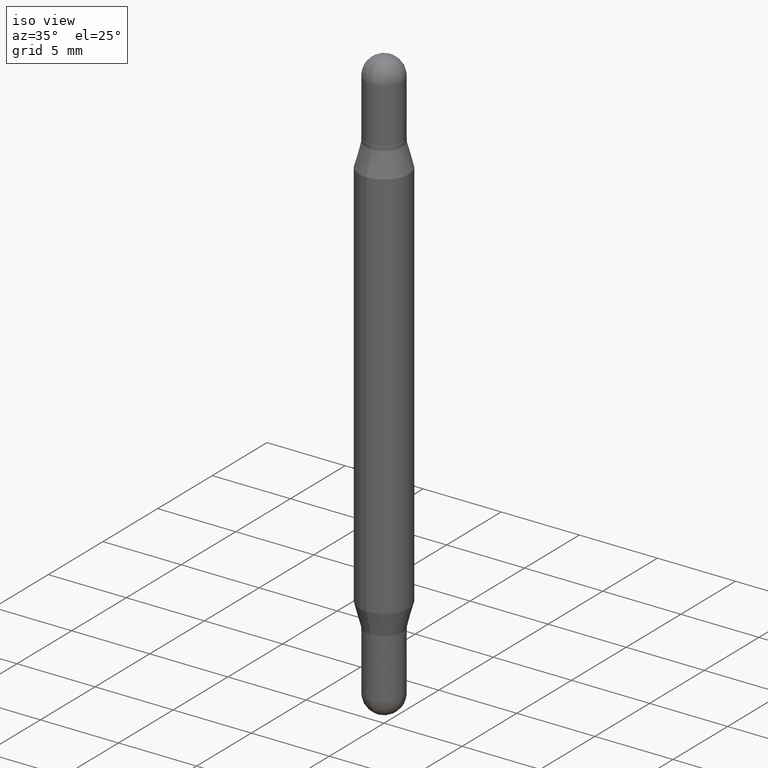
[diagram: clean part render]
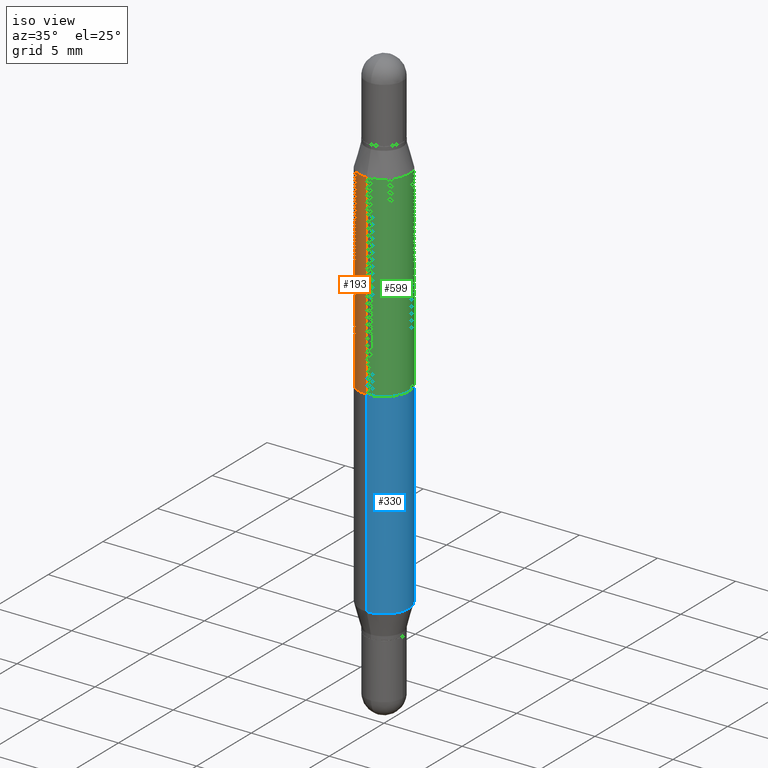
[diagram: same view with three faces highlighted in distinct colors, each labeled with its STEP entity id]
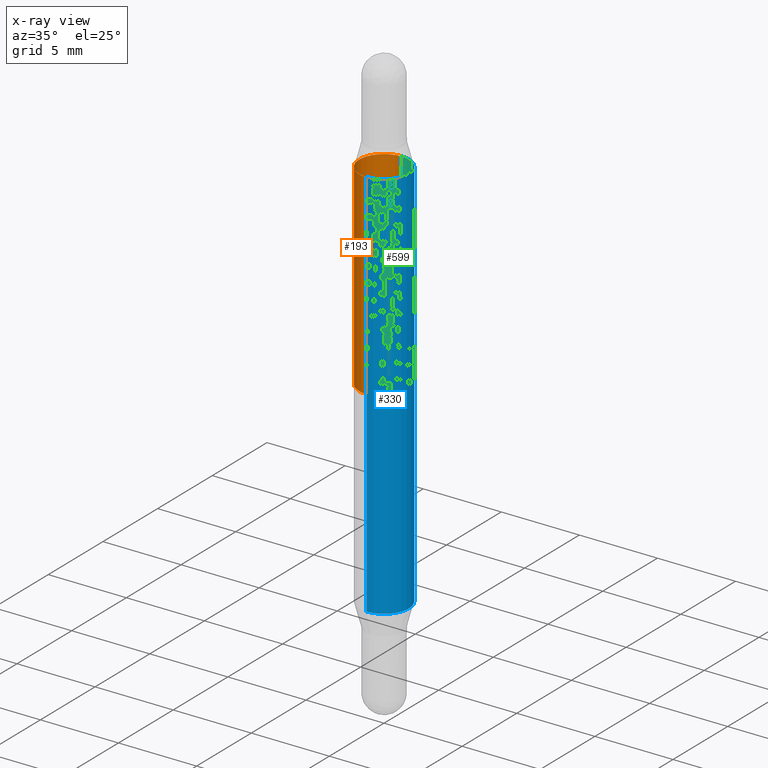
[diagram: x-ray of the same camera — body ghosted, the three highlighted faces saturated]
A machine part, iso view with three faces highlighted in distinct colors.
The next image is the same camera in x-ray (body ghosted, the three faces saturated) — at least one of them is partly hidden behind the body in this view.
Their STEP definitions:

[orange] entity #193 — the highlighted cylindrical surface (edge-blend (fillet) strip) has radius 1.5875 mm, axis along (-0, -0, -1).
#22 = CARTESIAN_POINT ( 'NONE',  ( 3.044245832732528794E-29, -8.967165018103877989E-16, -0.2552199925980758177 ) ) ;
#66 = EDGE_LOOP ( 'NONE', ( #688, #1031, #559, #199 ) ) ;
#86 = CYLINDRICAL_SURFACE ( 'NONE', #922, 0.06250000000000000000 ) ;
#193 = ADVANCED_FACE ( 'NONE', ( #990 ), #86, .T. ) ;
#196 = VERTEX_POINT ( 'NONE', #996 ) ;
#199 = ORIENTED_EDGE ( 'NONE', *, *, #239, .F. ) ;
#220 = CARTESIAN_POINT ( 'NONE',  ( 0.000000000000000000, -5.228321854365732350E-15, -1.500000000000000444 ) ) ;
#233 = VERTEX_POINT ( 'NONE', #1110 ) ;
#239 = EDGE_CURVE ( 'NONE', #196, #577, #927, .T. ) ;
#294 = CARTESIAN_POINT ( 'NONE',  ( 1.834207137785579931E-29, -2.618459874659673549E-15, -0.7500000000000002220 ) ) ;
#326 = CARTESIAN_POINT ( 'NONE',  ( -4.364351673553916201E-16, -0.06250000000000521805, -1.500000000000000222 ) ) ;
#329 = DIRECTION ( 'NONE',  ( -2.445609517047438880E-29, -3.479815972941410420E-15, -1.000000000000000000 ) ) ;
#335 = VECTOR ( 'NONE', #765, 39.37007874015748143 ) ;
#402 = CARTESIAN_POINT ( 'NONE',  ( 4.287811248607206733E-16, 0.06249999999999477501, -1.500000000000000666 ) ) ;
#467 = CARTESIAN_POINT ( 'NONE',  ( 4.287811248607450787E-16, 0.06249999999999737710, -0.7500000000000004441 ) ) ;
#499 = EDGE_CURVE ( 'NONE', #233, #196, #955, .T. ) ;
#522 = AXIS2_PLACEMENT_3D ( 'NONE', #294, #560, #622 ) ;
#545 = EDGE_CURVE ( 'NONE', #577, #730, #1019, .T. ) ;
#556 = DIRECTION ( 'NONE',  ( -2.445609517047439160E-29, -3.479815972941410420E-15, -1.000000000000000000 ) ) ;
#559 = ORIENTED_EDGE ( 'NONE', *, *, #545, .F. ) ;
#560 = DIRECTION ( 'NONE',  ( -0.000000000000000000, -3.485547902910486918E-15, -1.000000000000000000 ) ) ;
#577 = VERTEX_POINT ( 'NONE', #886 ) ;
#578 = LINE ( 'NONE', #402, #335 ) ;
#582 = VECTOR ( 'NONE', #329, 39.37007874015748143 ) ;
#622 = DIRECTION ( 'NONE',  ( 0.000000000000000000, 1.000000000000000000, -4.370956789862821150E-15 ) ) ;
#631 = AXIS2_PLACEMENT_3D ( 'NONE', #22, #698, #1053 ) ;
#688 = ORIENTED_EDGE ( 'NONE', *, *, #499, .F. ) ;
#698 = DIRECTION ( 'NONE',  ( 2.445609517047439160E-29, 3.479815972941410420E-15, 1.000000000000000000 ) ) ;
#730 = VERTEX_POINT ( 'NONE', #467 ) ;
#765 = DIRECTION ( 'NONE',  ( -2.445609517047438880E-29, -3.479815972941410420E-15, -1.000000000000000000 ) ) ;
#780 = EDGE_CURVE ( 'NONE', #233, #730, #578, .T. ) ;
#886 = CARTESIAN_POINT ( 'NONE',  ( -4.364351673553732298E-16, -0.06250000000000262290, -0.7499999999999998890 ) ) ;
#913 = DIRECTION ( 'NONE',  ( -6.982962677686265922E-15, -1.000000000000000000, 4.370956789862821150E-15 ) ) ;
#922 = AXIS2_PLACEMENT_3D ( 'NONE', #220, #556, #913 ) ;
#927 = LINE ( 'NONE', #326, #582 ) ;
#955 = CIRCLE ( 'NONE', #631, 0.06250000000000000000 ) ;
#990 = FACE_OUTER_BOUND ( 'NONE', #66, .T. ) ;
#996 = CARTESIAN_POINT ( 'NONE',  ( -4.364351673553612490E-16, -0.06250000000000090206, -0.2552199925980755957 ) ) ;
#1019 = CIRCLE ( 'NONE', #522, 0.06250000000000000000 ) ;
#1031 = ORIENTED_EDGE ( 'NONE', *, *, #780, .T. ) ;
#1053 = DIRECTION ( 'NONE',  ( -6.982962677686265922E-15, -1.000000000000000000, 3.278217592397115862E-15 ) ) ;
#1110 = CARTESIAN_POINT ( 'NONE',  ( 4.287811248607510938E-16, 0.06249999999999910488, -0.2552199925980759843 ) ) ;

[blue] entity #330 — the highlighted cylindrical surface (edge-blend (fillet) strip) has radius 1.5875 mm, axis along (-0, -0, -1).
#5 = ORIENTED_EDGE ( 'NONE', *, *, #721, .T. ) ;
#11 = VECTOR ( 'NONE', #383, 39.37007874015748143 ) ;
#12 = EDGE_CURVE ( 'NONE', #548, #465, #454, .T. ) ;
#57 = DIRECTION ( 'NONE',  ( -6.982962677686265922E-15, -1.000000000000000000, 3.278217592397115862E-15 ) ) ;
#198 = CARTESIAN_POINT ( 'NONE',  ( 4.287811248607390144E-16, 0.06249999999999565625, -1.244780007401924848 ) ) ;
#212 = DIRECTION ( 'NONE',  ( 2.445609517047439160E-29, 3.479815972941410420E-15, 1.000000000000000000 ) ) ;
#296 = DIRECTION ( 'NONE',  ( -2.445609517047438880E-29, -3.479815972941410420E-15, -1.000000000000000000 ) ) ;
#297 = DIRECTION ( 'NONE',  ( -6.982962677686265922E-15, -1.000000000000000000, 4.370956789862821150E-15 ) ) ;
#330 = ADVANCED_FACE ( 'NONE', ( #486 ), #720, .T. ) ;
#383 = DIRECTION ( 'NONE',  ( -2.445609517047438880E-29, -3.479815972941410420E-15, -1.000000000000000000 ) ) ;
#407 = ORIENTED_EDGE ( 'NONE', *, *, #561, .F. ) ;
#412 = DIRECTION ( 'NONE',  ( -6.982962677686265922E-15, -1.000000000000000000, 4.370956789862821150E-15 ) ) ;
#430 = VERTEX_POINT ( 'NONE', #951 ) ;
#448 = VECTOR ( 'NONE', #296, 39.37007874015748143 ) ;
#454 = LINE ( 'NONE', #963, #448 ) ;
#464 = CIRCLE ( 'NONE', #1117, 0.06250000000000000000 ) ;
#465 = VERTEX_POINT ( 'NONE', #198 ) ;
#486 = FACE_OUTER_BOUND ( 'NONE', #936, .T. ) ;
#539 = CARTESIAN_POINT ( 'NONE',  ( 3.044245832732528794E-29, -4.345875336214013130E-15, -1.244780007401924626 ) ) ;
#548 = VERTEX_POINT ( 'NONE', #978 ) ;
#561 = EDGE_CURVE ( 'NONE', #430, #548, #615, .T. ) ;
#615 = CIRCLE ( 'NONE', #999, 0.06250000000000000000 ) ;
#646 = CARTESIAN_POINT ( 'NONE',  ( 3.044245832732528794E-29, -8.967165018103877989E-16, -0.2552199925980758177 ) ) ;
#720 = CYLINDRICAL_SURFACE ( 'NONE', #807, 0.06250000000000000000 ) ;
#721 = EDGE_CURVE ( 'NONE', #430, #755, #930, .T. ) ;
#737 = CARTESIAN_POINT ( 'NONE',  ( -4.364351673553611504E-16, -0.06250000000000434375, -1.244780007401924404 ) ) ;
#755 = VERTEX_POINT ( 'NONE', #737 ) ;
#807 = AXIS2_PLACEMENT_3D ( 'NONE', #823, #1078, #297 ) ;
#823 = CARTESIAN_POINT ( 'NONE',  ( 0.000000000000000000, -5.228321854365732350E-15, -1.500000000000000444 ) ) ;
#845 = DIRECTION ( 'NONE',  ( -2.445609517047439160E-29, 3.491279832879563417E-15, 1.000000000000000000 ) ) ;
#888 = ORIENTED_EDGE ( 'NONE', *, *, #895, .T. ) ;
#895 = EDGE_CURVE ( 'NONE', #755, #465, #464, .T. ) ;
#930 = LINE ( 'NONE', #1081, #11 ) ;
#936 = EDGE_LOOP ( 'NONE', ( #1054, #407, #5, #888 ) ) ;
#951 = CARTESIAN_POINT ( 'NONE',  ( -4.364351673553612490E-16, -0.06250000000000090206, -0.2552199925980755957 ) ) ;
#963 = CARTESIAN_POINT ( 'NONE',  ( 4.287811248607206733E-16, 0.06249999999999477501, -1.500000000000000666 ) ) ;
#978 = CARTESIAN_POINT ( 'NONE',  ( 4.287811248607510938E-16, 0.06249999999999910488, -0.2552199925980759843 ) ) ;
#999 = AXIS2_PLACEMENT_3D ( 'NONE', #646, #212, #57 ) ;
#1054 = ORIENTED_EDGE ( 'NONE', *, *, #12, .F. ) ;
#1078 = DIRECTION ( 'NONE',  ( -2.445609517047439160E-29, -3.479815972941410420E-15, -1.000000000000000000 ) ) ;
#1081 = CARTESIAN_POINT ( 'NONE',  ( -4.364351673553916201E-16, -0.06250000000000521805, -1.500000000000000222 ) ) ;
#1117 = AXIS2_PLACEMENT_3D ( 'NONE', #539, #845, #412 ) ;

[green] entity #599 — the highlighted cylindrical surface (edge-blend (fillet) strip) has radius 1.5875 mm, axis along (-0, -0, -1).
#26 = AXIS2_PLACEMENT_3D ( 'NONE', #133, #372, #984 ) ;
#107 = AXIS2_PLACEMENT_3D ( 'NONE', #937, #173, #501 ) ;
#133 = CARTESIAN_POINT ( 'NONE',  ( 3.044245832732528794E-29, -8.967165018103877989E-16, -0.2552199925980758177 ) ) ;
#134 = FACE_OUTER_BOUND ( 'NONE', #1093, .T. ) ;
#173 = DIRECTION ( 'NONE',  ( -0.000000000000000000, -3.485547902910486918E-15, -1.000000000000000000 ) ) ;
#196 = VERTEX_POINT ( 'NONE', #996 ) ;
#225 = ORIENTED_EDGE ( 'NONE', *, *, #316, .F. ) ;
#233 = VERTEX_POINT ( 'NONE', #1110 ) ;
#239 = EDGE_CURVE ( 'NONE', #196, #577, #927, .T. ) ;
#255 = ORIENTED_EDGE ( 'NONE', *, *, #780, .F. ) ;
#316 = EDGE_CURVE ( 'NONE', #196, #233, #333, .T. ) ;
#326 = CARTESIAN_POINT ( 'NONE',  ( -4.364351673553916201E-16, -0.06250000000000521805, -1.500000000000000222 ) ) ;
#329 = DIRECTION ( 'NONE',  ( -2.445609517047438880E-29, -3.479815972941410420E-15, -1.000000000000000000 ) ) ;
#333 = CIRCLE ( 'NONE', #26, 0.06250000000000000000 ) ;
#335 = VECTOR ( 'NONE', #765, 39.37007874015748143 ) ;
#372 = DIRECTION ( 'NONE',  ( 2.445609517047439160E-29, 3.479815972941410420E-15, 1.000000000000000000 ) ) ;
#402 = CARTESIAN_POINT ( 'NONE',  ( 4.287811248607206733E-16, 0.06249999999999477501, -1.500000000000000666 ) ) ;
#467 = CARTESIAN_POINT ( 'NONE',  ( 4.287811248607450787E-16, 0.06249999999999737710, -0.7500000000000004441 ) ) ;
#501 = DIRECTION ( 'NONE',  ( 0.000000000000000000, 1.000000000000000000, -4.370956789862821150E-15 ) ) ;
#531 = DIRECTION ( 'NONE',  ( -2.445609517047439160E-29, -3.479815972941410420E-15, -1.000000000000000000 ) ) ;
#571 = ORIENTED_EDGE ( 'NONE', *, *, #239, .T. ) ;
#577 = VERTEX_POINT ( 'NONE', #886 ) ;
#578 = LINE ( 'NONE', #402, #335 ) ;
#582 = VECTOR ( 'NONE', #329, 39.37007874015748143 ) ;
#599 = ADVANCED_FACE ( 'NONE', ( #134 ), #802, .T. ) ;
#633 = DIRECTION ( 'NONE',  ( -6.982962677686265922E-15, -1.000000000000000000, 4.370956789862821150E-15 ) ) ;
#730 = VERTEX_POINT ( 'NONE', #467 ) ;
#743 = AXIS2_PLACEMENT_3D ( 'NONE', #894, #531, #633 ) ;
#765 = DIRECTION ( 'NONE',  ( -2.445609517047438880E-29, -3.479815972941410420E-15, -1.000000000000000000 ) ) ;
#780 = EDGE_CURVE ( 'NONE', #233, #730, #578, .T. ) ;
#802 = CYLINDRICAL_SURFACE ( 'NONE', #743, 0.06250000000000000000 ) ;
#861 = EDGE_CURVE ( 'NONE', #730, #577, #1073, .T. ) ;
#886 = CARTESIAN_POINT ( 'NONE',  ( -4.364351673553732298E-16, -0.06250000000000262290, -0.7499999999999998890 ) ) ;
#894 = CARTESIAN_POINT ( 'NONE',  ( 0.000000000000000000, -5.228321854365732350E-15, -1.500000000000000444 ) ) ;
#915 = ORIENTED_EDGE ( 'NONE', *, *, #861, .F. ) ;
#927 = LINE ( 'NONE', #326, #582 ) ;
#937 = CARTESIAN_POINT ( 'NONE',  ( 1.834207137785579931E-29, -2.618459874659673549E-15, -0.7500000000000002220 ) ) ;
#984 = DIRECTION ( 'NONE',  ( -6.982962677686265922E-15, -1.000000000000000000, 3.278217592397115862E-15 ) ) ;
#996 = CARTESIAN_POINT ( 'NONE',  ( -4.364351673553612490E-16, -0.06250000000000090206, -0.2552199925980755957 ) ) ;
#1073 = CIRCLE ( 'NONE', #107, 0.06250000000000000000 ) ;
#1093 = EDGE_LOOP ( 'NONE', ( #255, #225, #571, #915 ) ) ;
#1110 = CARTESIAN_POINT ( 'NONE',  ( 4.287811248607510938E-16, 0.06249999999999910488, -0.2552199925980759843 ) ) ;